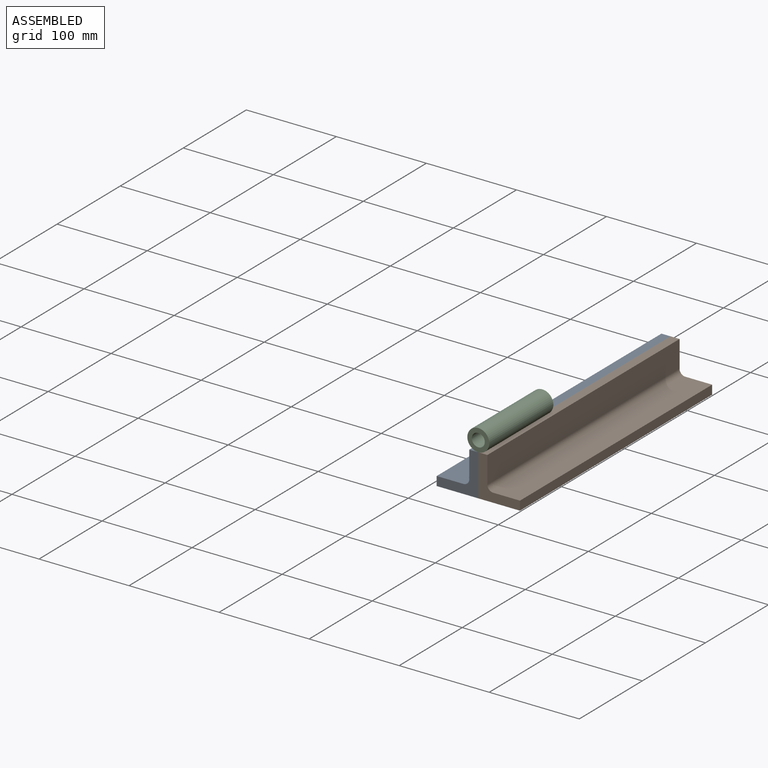
[diagram: assembled view]
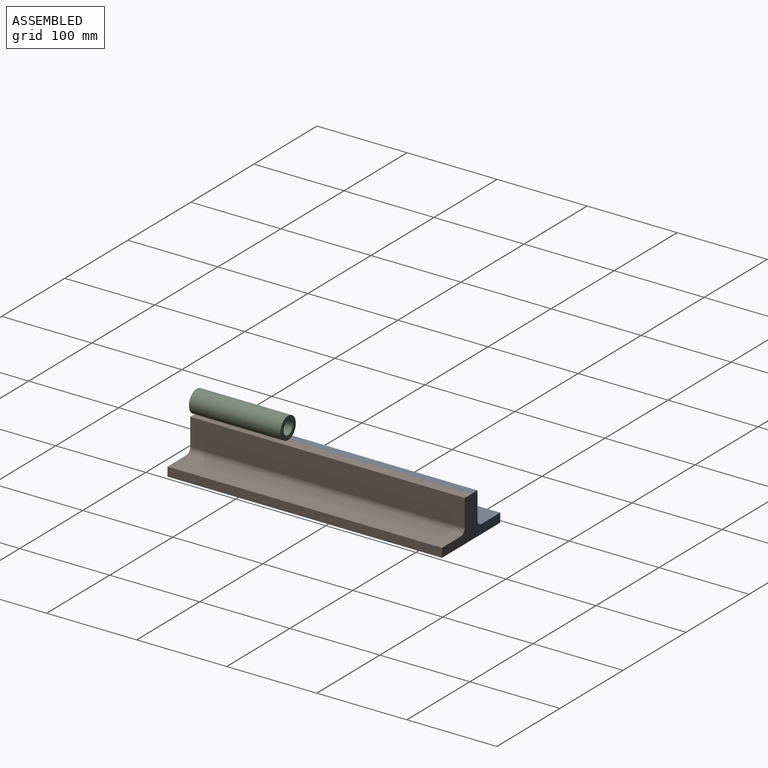
[diagram: assembled view, second angle]
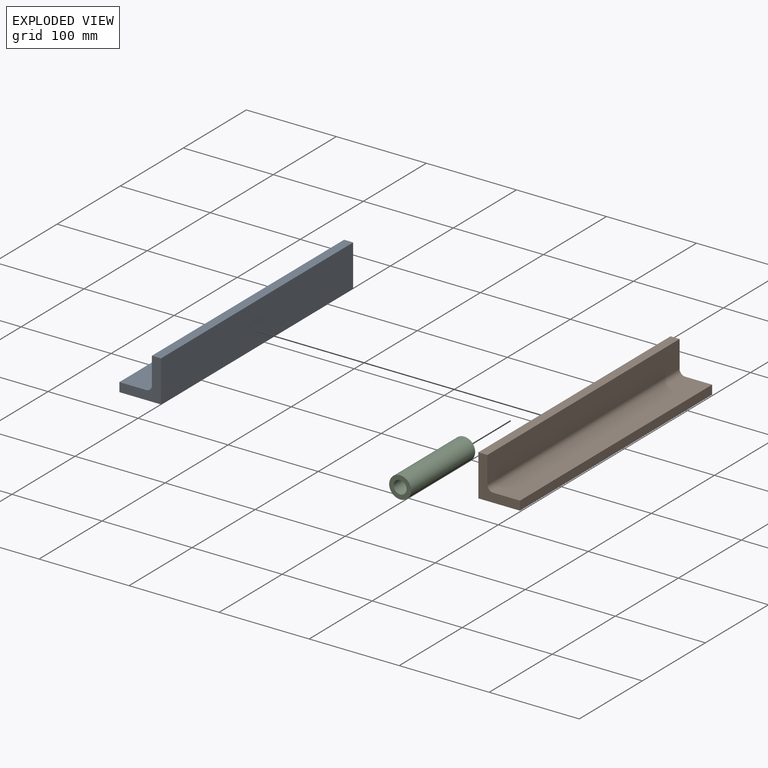
[diagram: exploded view]
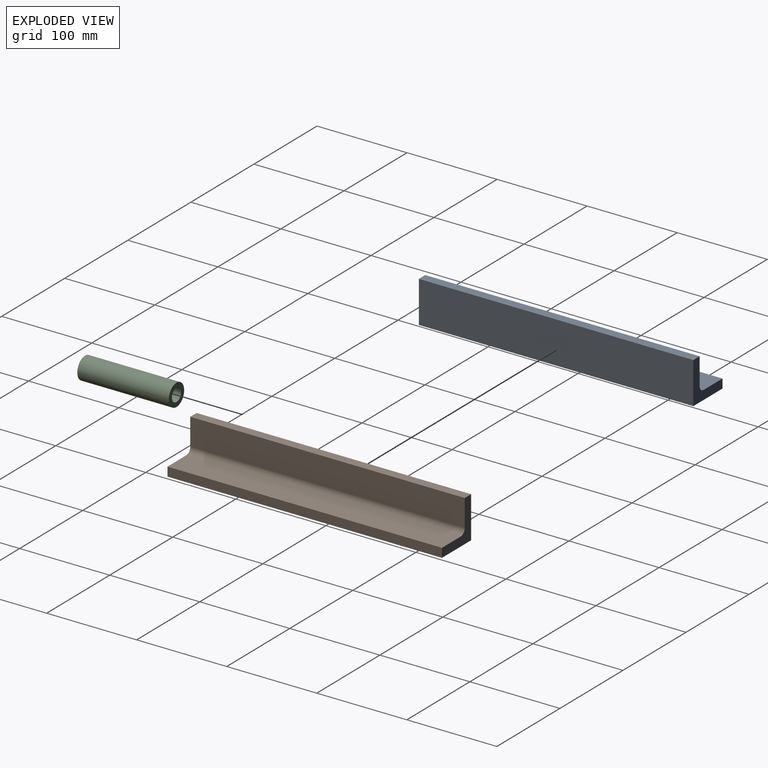
[diagram: exploded view, second angle]
ASSEMBLY  parts=3 mates=2
PART A: 9 faces, bbox 46.2x304.8x46.2 mm
  f0: plane 304.8x46.24mm, normal (1,0,0), area 14095.3mm2, adj f1,f6,f7,f8
  f1: plane 304.8x10.07mm, normal (0,0,1), area 3068.4mm2, adj f0,f2,f7,f8
  f2: plane 304.8x29.83mm, normal (-1,0,0), area 9091.4mm2, adj f1,f3,f7,f8
  f3: cylinder r=6.35mm len=304.8mm, axis (0,1,0), area 3040.2mm2, adj f2,f4,f7,f8
  f4: plane 304.8x29.83mm, normal (0,0,1), area 9091.4mm2, adj f3,f5,f7,f8
  f5: plane 304.8x10.07mm, normal (-1,0,0), area 3068.4mm2, adj f4,f6,f7,f8
  f6: plane 304.8x46.24mm, normal (0,0,-1), area 14095.3mm2, adj f0,f5,f7,f8
  f7: plane 46.24x46.24mm, normal (0,-1,0), area 838.4mm2, adj f0,f1,f2,f3,f4,f5,f6
  f8: plane 46.24x46.24mm, normal (0,1,0), area 838.4mm2, adj f0,f1,f2,f3,f4,f5,f6
PART B: same geometry as A
PART C: 4 faces, bbox 24.4x101.6x24.4 mm
  f0: cylinder r=7.22mm len=101.6mm, axis (0,1,0), area 4610.7mm2, adj f2,f3
  f1: cylinder r=12.19mm len=101.6mm, axis (0,1,0), area 7783.6mm2, adj f2,f3
  f2: plane 24.39x24.39mm, normal (0,-1,0), area 303.2mm2, adj f0,f1
  f3: plane 24.39x24.39mm, normal (0,1,0), area 303.2mm2, adj f0,f1
PLACE A t=(-41.45,-20.06,4.86)mm
PLACE B rot(axis=(0,0,-1),180deg) t=(-41.45,-20.06,4.86)mm
PLACE C rot(axis=(0.57,0.2,0.8),0deg) t=(-77.73,-121.66,0.42)mm
MATE fastened B.f0 <-> A.f0  axis (-1,0,0) through (-41.45,-20.06,27.99)mm
MATE fastened C.f0 <-> A.f7  axis (0,1,0) through (-41.45,-172.46,63.3)mm
